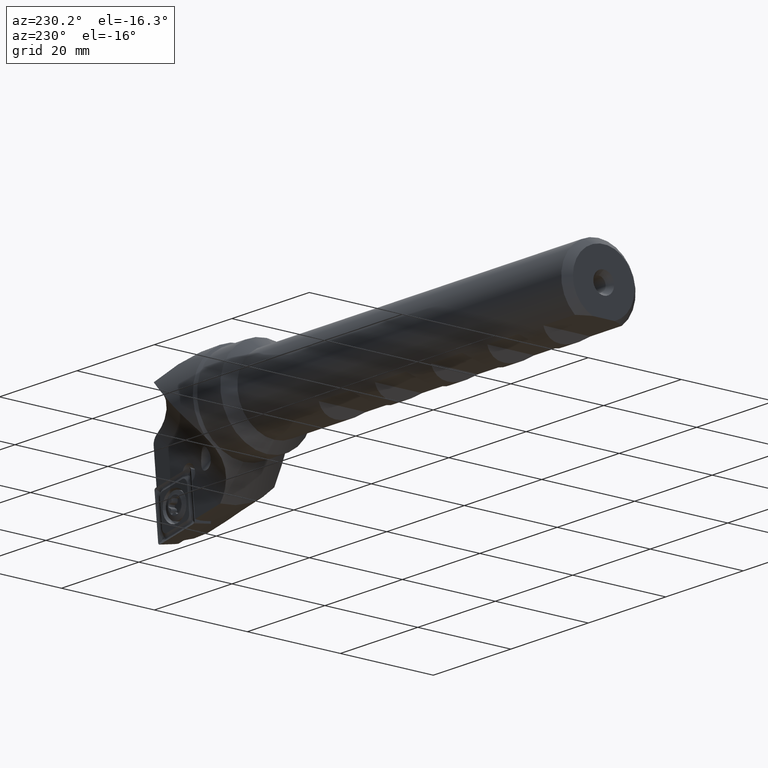
[diagram: clean part render]
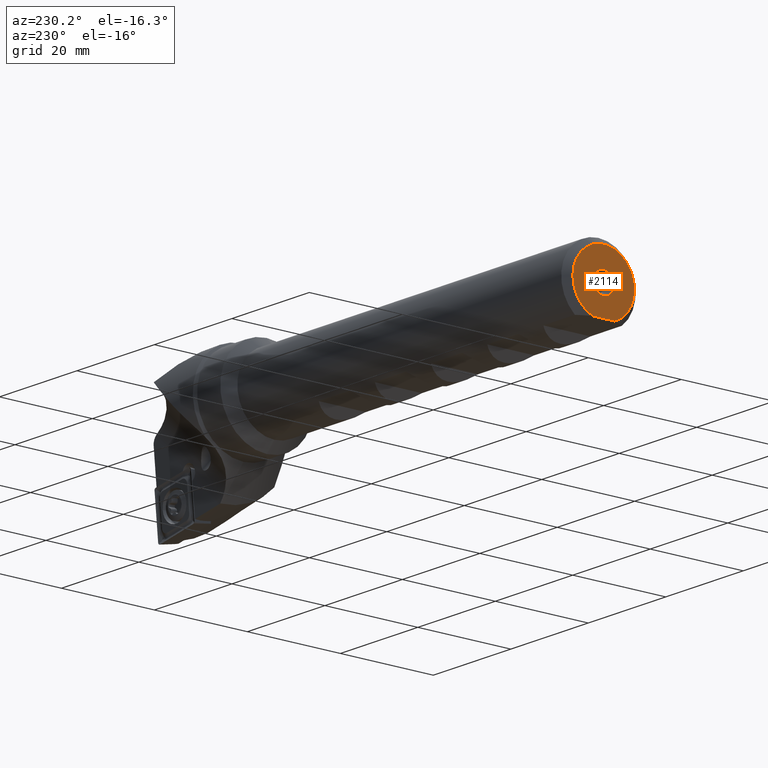
[diagram: same view with one face highlighted and labeled with its STEP entity id]
A machine part, auxiliary view. The second image highlights one B-rep face of the part: STEP entity #2114.
In plain terms, the highlighted planar face has unit normal (1, 0, 0).
Its self-contained STEP definition (entity closure, byte-faithful):
#74 = CARTESIAN_POINT ( 'NONE',  ( 0.0000000000000000000, 0.0000000000000000000, 2.250000000000000000 ) ) ;
#75 = CARTESIAN_POINT ( 'NONE',  ( 0.0000000000000000000, 2.755455298081544300E-016, -2.250000000000000000 ) ) ;
#524 = CARTESIAN_POINT ( 'NONE',  ( 0.0000000000000000000, -2.334657362441031400, -6.199999999999997500 ) ) ;
#527 = CARTESIAN_POINT ( 'NONE',  ( 2.357445088358658700E-016, 2.334657362441032300, -6.199999999999997500 ) ) ;
#681 = AXIS2_PLACEMENT_3D ( 'NONE', #3164, #3165, #3166 ) ;
#684 = AXIS2_PLACEMENT_3D ( 'NONE', #3187, #3188, #3189 ) ;
#754 = AXIS2_PLACEMENT_3D ( 'NONE', #3974, #3975, #3976 ) ;
#1071 = ORIENTED_EDGE ( 'NONE', *, *, #5110, .F. ) ;
#1072 = ORIENTED_EDGE ( 'NONE', *, *, #2233, .F. ) ;
#1073 = ORIENTED_EDGE ( 'NONE', *, *, #2240, .T. ) ;
#1074 = ORIENTED_EDGE ( 'NONE', *, *, #2242, .T. ) ;
#1389 = VERTEX_POINT ( 'NONE', #75 ) ;
#1390 = VERTEX_POINT ( 'NONE', #74 ) ;
#1422 = VERTEX_POINT ( 'NONE', #527 ) ;
#1424 = VERTEX_POINT ( 'NONE', #524 ) ;
#1587 = FACE_BOUND ( 'NONE', #4708, .T. ) ;
#1594 = FACE_OUTER_BOUND ( 'NONE', #4698, .T. ) ;
#1781 = CIRCLE ( 'NONE', #681, 2.250000000000000000 ) ;
#1791 = CIRCLE ( 'NONE', #684, 6.625000000000006200 ) ;
#1792 = LINE ( 'NONE', #3195, #1793 ) ;
#1793 = VECTOR ( 'NONE', #3196, 1000.000000000000000 ) ;
#2025 = AXIS2_PLACEMENT_3D ( 'NONE', #2743, #2752, #2753 ) ;
#2114 = ADVANCED_FACE ( 'NONE', ( #1587, #1594 ), #2747, .F. ) ;
#2233 = EDGE_CURVE ( 'NONE', #1389, #1390, #1781, .T. ) ;
#2240 = EDGE_CURVE ( 'NONE', #1424, #1422, #1791, .T. ) ;
#2242 = EDGE_CURVE ( 'NONE', #1422, #1424, #1792, .T. ) ;
#2743 = CARTESIAN_POINT ( 'NONE',  ( -1.446785236883353000E-018, 2.250000000000000000, 0.0000000000000000000 ) ) ;
#2747 = PLANE ( 'NONE',  #2025 ) ;
#2752 = DIRECTION ( 'NONE',  ( 1.000000000000000000, 0.0000000000000000000, 0.0000000000000000000 ) ) ;
#2753 = DIRECTION ( 'NONE',  ( 0.0000000000000000000, 0.0000000000000000000, -1.000000000000000000 ) ) ;
#3164 = CARTESIAN_POINT ( 'NONE',  ( 0.0000000000000000000, 0.0000000000000000000, 0.0000000000000000000 ) ) ;
#3165 = DIRECTION ( 'NONE',  ( -1.000000000000000000, -0.0000000000000000000, -0.0000000000000000000 ) ) ;
#3166 = DIRECTION ( 'NONE',  ( 0.0000000000000000000, 0.0000000000000000000, 1.000000000000000000 ) ) ;
#3187 = CARTESIAN_POINT ( 'NONE',  ( 0.0000000000000000000, 0.0000000000000000000, 0.0000000000000000000 ) ) ;
#3188 = DIRECTION ( 'NONE',  ( -1.000000000000000000, -0.0000000000000000000, -0.0000000000000000000 ) ) ;
#3189 = DIRECTION ( 'NONE',  ( 0.0000000000000000000, 0.0000000000000000000, 1.000000000000000000 ) ) ;
#3195 = CARTESIAN_POINT ( 'NONE',  ( -1.446785236883353000E-018, 2.250000000000000000, -6.199999999999997500 ) ) ;
#3196 = DIRECTION ( 'NONE',  ( 0.0000000000000000000, -1.000000000000000000, 0.0000000000000000000 ) ) ;
#3974 = CARTESIAN_POINT ( 'NONE',  ( 0.0000000000000000000, 0.0000000000000000000, 0.0000000000000000000 ) ) ;
#3975 = DIRECTION ( 'NONE',  ( -1.000000000000000000, -0.0000000000000000000, -0.0000000000000000000 ) ) ;
#3976 = DIRECTION ( 'NONE',  ( 0.0000000000000000000, 0.0000000000000000000, 1.000000000000000000 ) ) ;
#4380 = CIRCLE ( 'NONE', #754, 2.250000000000000000 ) ;
#4698 = EDGE_LOOP ( 'NONE', ( #1073, #1074 ) ) ;
#4708 = EDGE_LOOP ( 'NONE', ( #1071, #1072 ) ) ;
#5110 = EDGE_CURVE ( 'NONE', #1390, #1389, #4380, .T. ) ;